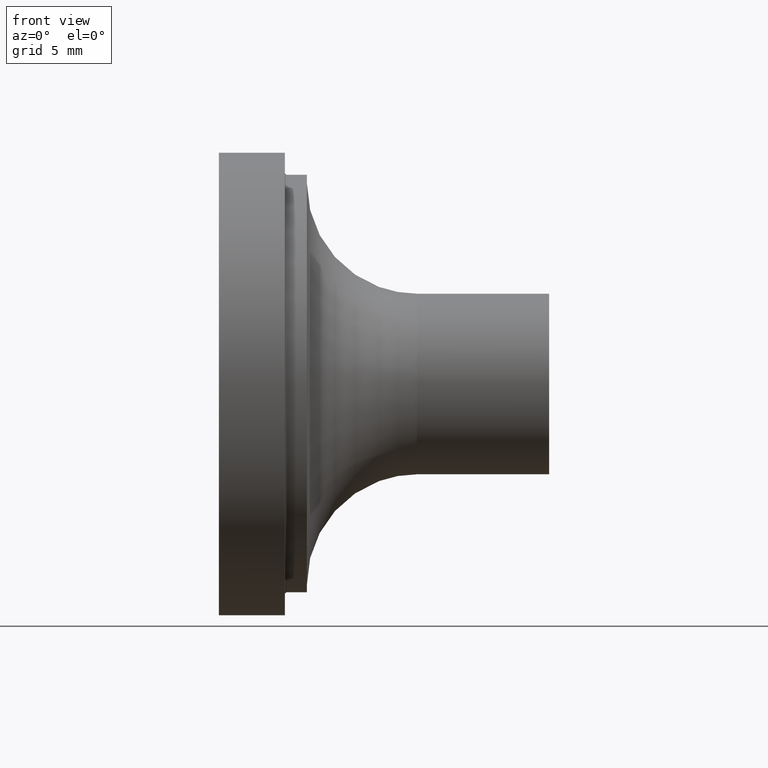
[diagram: clean part render]
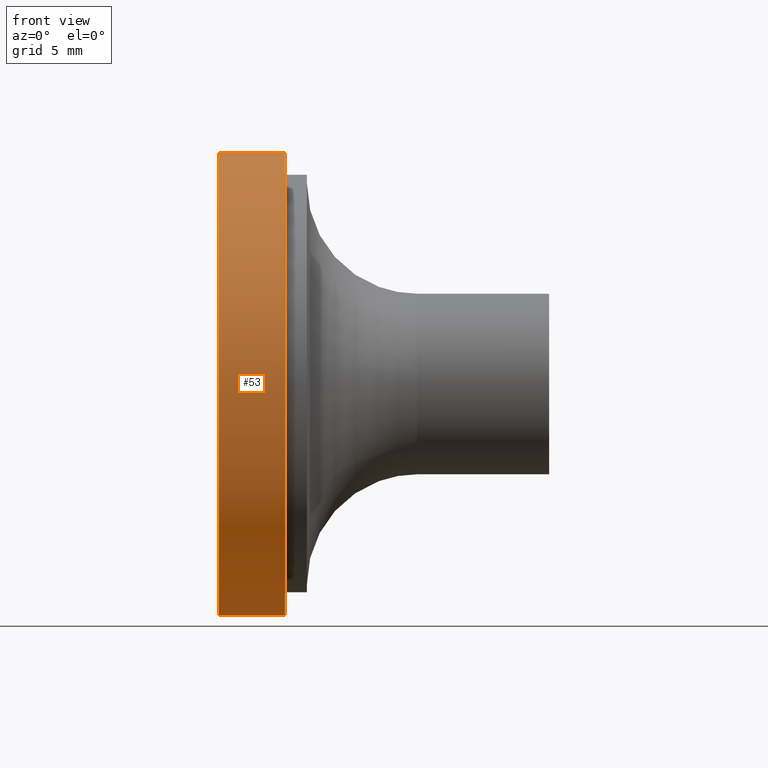
[diagram: same view with one face highlighted and labeled with its STEP entity id]
A machine part, front view. The second image highlights one B-rep face of the part: STEP entity #53.
In plain terms, the highlighted cylindrical surface (bore or boss wall) has radius 10.5 mm, axis along (1, -0, -0).
Its self-contained STEP definition (entity closure, byte-faithful):
#53 = ADVANCED_FACE( '', ( #112, #113 ), #114, .T. );
#112 = FACE_OUTER_BOUND( '', #171, .T. );
#113 = FACE_OUTER_BOUND( '', #172, .T. );
#114 = CYLINDRICAL_SURFACE( '', #173, 10.5000000000000 );
#171 = EDGE_LOOP( '', ( #240 ) );
#172 = EDGE_LOOP( '', ( #241 ) );
#173 = AXIS2_PLACEMENT_3D( '', #242, #243, #244 );
#240 = ORIENTED_EDGE( '', *, *, #289, .F. );
#241 = ORIENTED_EDGE( '', *, *, #273, .T. );
#242 = CARTESIAN_POINT( '', ( -60.0000000000000, 0.000000000000000, 0.000000000000000 ) );
#243 = DIRECTION( '', ( 1.00000000000000, -0.000000000000000, -0.000000000000000 ) );
#244 = DIRECTION( '', ( 0.000000000000000, 0.000000000000000, 1.00000000000000 ) );
#273 = EDGE_CURVE( '', #301, #301, #302, .T. );
#289 = EDGE_CURVE( '', #326, #326, #327, .T. );
#301 = VERTEX_POINT( '', #340 );
#302 = CIRCLE( '', #341, 10.5000000000000 );
#326 = VERTEX_POINT( '', #365 );
#327 = CIRCLE( '', #366, 10.5000000000000 );
#340 = CARTESIAN_POINT( '', ( 3.00000000000000, 0.000000000000000, 10.5000000000000 ) );
#341 = AXIS2_PLACEMENT_3D( '', #379, #380, #381 );
#365 = CARTESIAN_POINT( '', ( 0.000000000000000, 0.000000000000000, 10.5000000000000 ) );
#366 = AXIS2_PLACEMENT_3D( '', #406, #407, #408 );
#379 = CARTESIAN_POINT( '', ( 3.00000000000000, 0.000000000000000, 0.000000000000000 ) );
#380 = DIRECTION( '', ( -1.00000000000000, 0.000000000000000, 0.000000000000000 ) );
#381 = DIRECTION( '', ( 0.000000000000000, 0.000000000000000, 1.00000000000000 ) );
#406 = CARTESIAN_POINT( '', ( 0.000000000000000, 0.000000000000000, 0.000000000000000 ) );
#407 = DIRECTION( '', ( -1.00000000000000, 0.000000000000000, 0.000000000000000 ) );
#408 = DIRECTION( '', ( 0.000000000000000, 0.000000000000000, 1.00000000000000 ) );